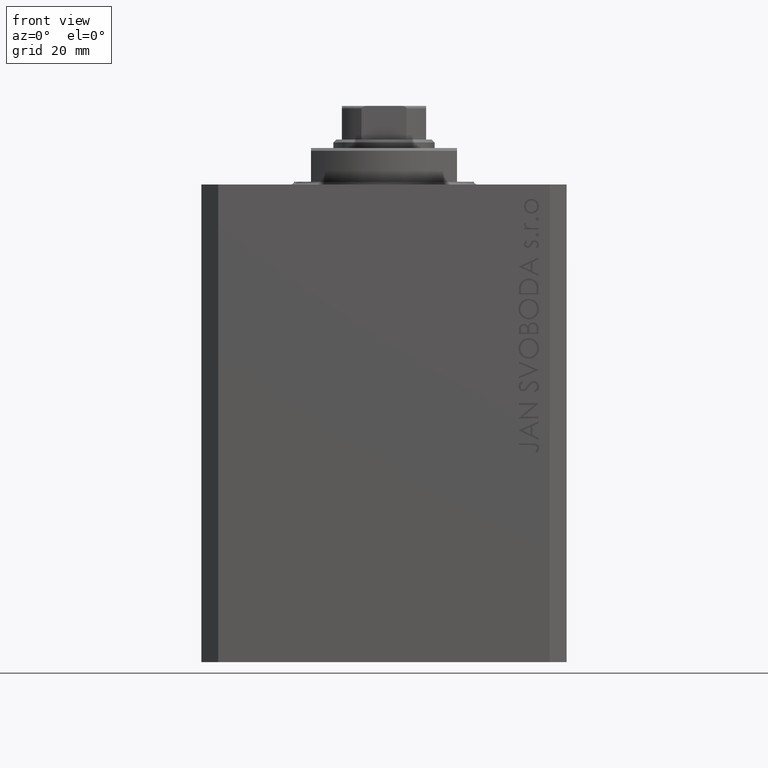
[diagram: clean part render]
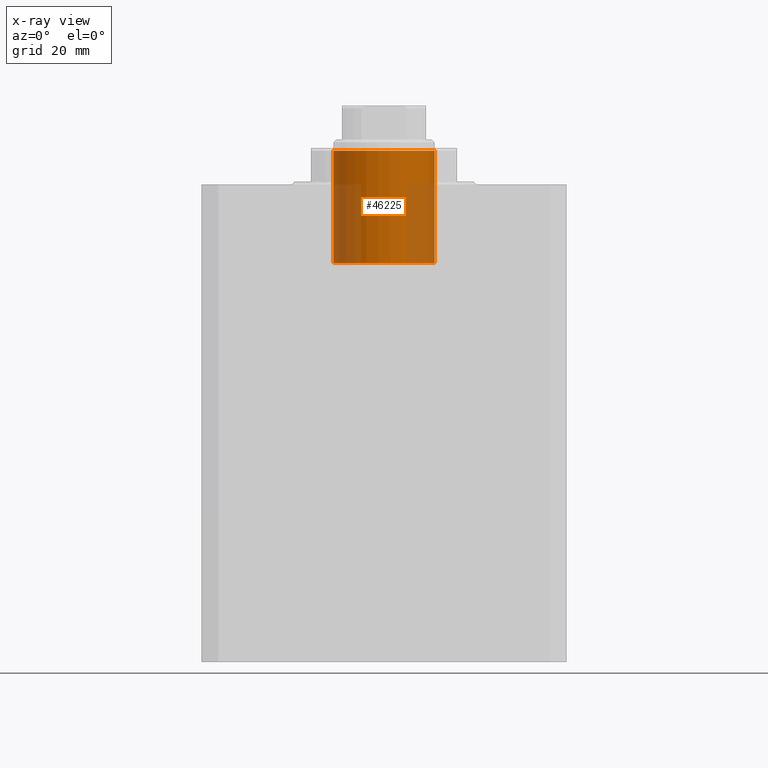
[diagram: x-ray — body ghosted, one internal face saturated and labeled with its STEP entity id]
A machine part, front view, then the same camera in x-ray: the body is ghosted and one INTERNAL B-rep face — a face not visible from any outside direction — is saturated and labeled: STEP entity #46225.
In plain terms, the highlighted cylindrical surface (partial cylindrical patch) has radius 9 mm, axis along (0, -0, 1).
Its self-contained STEP definition (entity closure, byte-faithful):
#597 = CARTESIAN_POINT ( 'NONE',  ( 0.000000000000000000, 0.000000000000000000, 14.00000000000000178 ) ) ;
#974 = CIRCLE ( 'NONE', #38569, 9.000000000000000000 ) ;
#983 = CARTESIAN_POINT ( 'NONE',  ( 0.000000000000000000, 0.000000000000000000, 14.00000000000000178 ) ) ;
#1677 = CIRCLE ( 'NONE', #28520, 9.000000000000000000 ) ;
#1868 = VERTEX_POINT ( 'NONE', #43158 ) ;
#2401 = DIRECTION ( 'NONE',  ( -0.000000000000000000, -0.000000000000000000, -1.000000000000000000 ) ) ;
#3521 = CARTESIAN_POINT ( 'NONE',  ( -9.000000000000000000, 0.000000000000000000, -5.999999999999987566 ) ) ;
#4640 = VERTEX_POINT ( 'NONE', #13253 ) ;
#6328 = EDGE_CURVE ( 'NONE', #4640, #45867, #41007, .T. ) ;
#6872 = FACE_OUTER_BOUND ( 'NONE', #12767, .T. ) ;
#7346 = DIRECTION ( 'NONE',  ( -1.000000000000000000, 0.000000000000000000, 0.000000000000000000 ) ) ;
#8111 = EDGE_CURVE ( 'NONE', #45867, #31159, #1677, .T. ) ;
#8140 = DIRECTION ( 'NONE',  ( -0.000000000000000000, -0.000000000000000000, -1.000000000000000000 ) ) ;
#12767 = EDGE_LOOP ( 'NONE', ( #16323, #28576, #24389, #14812 ) ) ;
#13253 = CARTESIAN_POINT ( 'NONE',  ( 9.000000000000000000, 1.102182119232617714E-15, 14.00000000000000178 ) ) ;
#14812 = ORIENTED_EDGE ( 'NONE', *, *, #29858, .F. ) ;
#16323 = ORIENTED_EDGE ( 'NONE', *, *, #31640, .F. ) ;
#20952 = CARTESIAN_POINT ( 'NONE',  ( 0.000000000000000000, 0.000000000000000000, -5.999999999999987566 ) ) ;
#21132 = VECTOR ( 'NONE', #8140, 1000.000000000000000 ) ;
#21191 = DIRECTION ( 'NONE',  ( -1.000000000000000000, 0.000000000000000000, 0.000000000000000000 ) ) ;
#21533 = CYLINDRICAL_SURFACE ( 'NONE', #37433, 9.000000000000000000 ) ;
#24340 = CARTESIAN_POINT ( 'NONE',  ( 9.000000000000000000, 1.102182119232617714E-15, -5.999999999999987566 ) ) ;
#24389 = ORIENTED_EDGE ( 'NONE', *, *, #8111, .T. ) ;
#25914 = CARTESIAN_POINT ( 'NONE',  ( 9.000000000000000000, 1.102182119232617714E-15, 14.00000000000000178 ) ) ;
#28520 = AXIS2_PLACEMENT_3D ( 'NONE', #20952, #35560, #21191 ) ;
#28576 = ORIENTED_EDGE ( 'NONE', *, *, #6328, .T. ) ;
#29858 = EDGE_CURVE ( 'NONE', #1868, #31159, #38640, .T. ) ;
#31159 = VERTEX_POINT ( 'NONE', #3521 ) ;
#31640 = EDGE_CURVE ( 'NONE', #4640, #1868, #974, .T. ) ;
#31673 = CARTESIAN_POINT ( 'NONE',  ( -9.000000000000000000, 0.000000000000000000, 14.00000000000000178 ) ) ;
#35560 = DIRECTION ( 'NONE',  ( 0.000000000000000000, 0.000000000000000000, -1.000000000000000000 ) ) ;
#36834 = DIRECTION ( 'NONE',  ( -0.000000000000000000, -0.000000000000000000, -1.000000000000000000 ) ) ;
#37433 = AXIS2_PLACEMENT_3D ( 'NONE', #597, #36834, #7346 ) ;
#37943 = DIRECTION ( 'NONE',  ( -1.000000000000000000, 0.000000000000000000, 0.000000000000000000 ) ) ;
#38569 = AXIS2_PLACEMENT_3D ( 'NONE', #983, #45858, #37943 ) ;
#38640 = LINE ( 'NONE', #31673, #39252 ) ;
#39252 = VECTOR ( 'NONE', #2401, 1000.000000000000000 ) ;
#41007 = LINE ( 'NONE', #25914, #21132 ) ;
#43158 = CARTESIAN_POINT ( 'NONE',  ( -9.000000000000000000, 0.000000000000000000, 14.00000000000000178 ) ) ;
#45858 = DIRECTION ( 'NONE',  ( 0.000000000000000000, 0.000000000000000000, -1.000000000000000000 ) ) ;
#45867 = VERTEX_POINT ( 'NONE', #24340 ) ;
#46225 = ADVANCED_FACE ( 'NONE', ( #6872 ), #21533, .F. ) ;